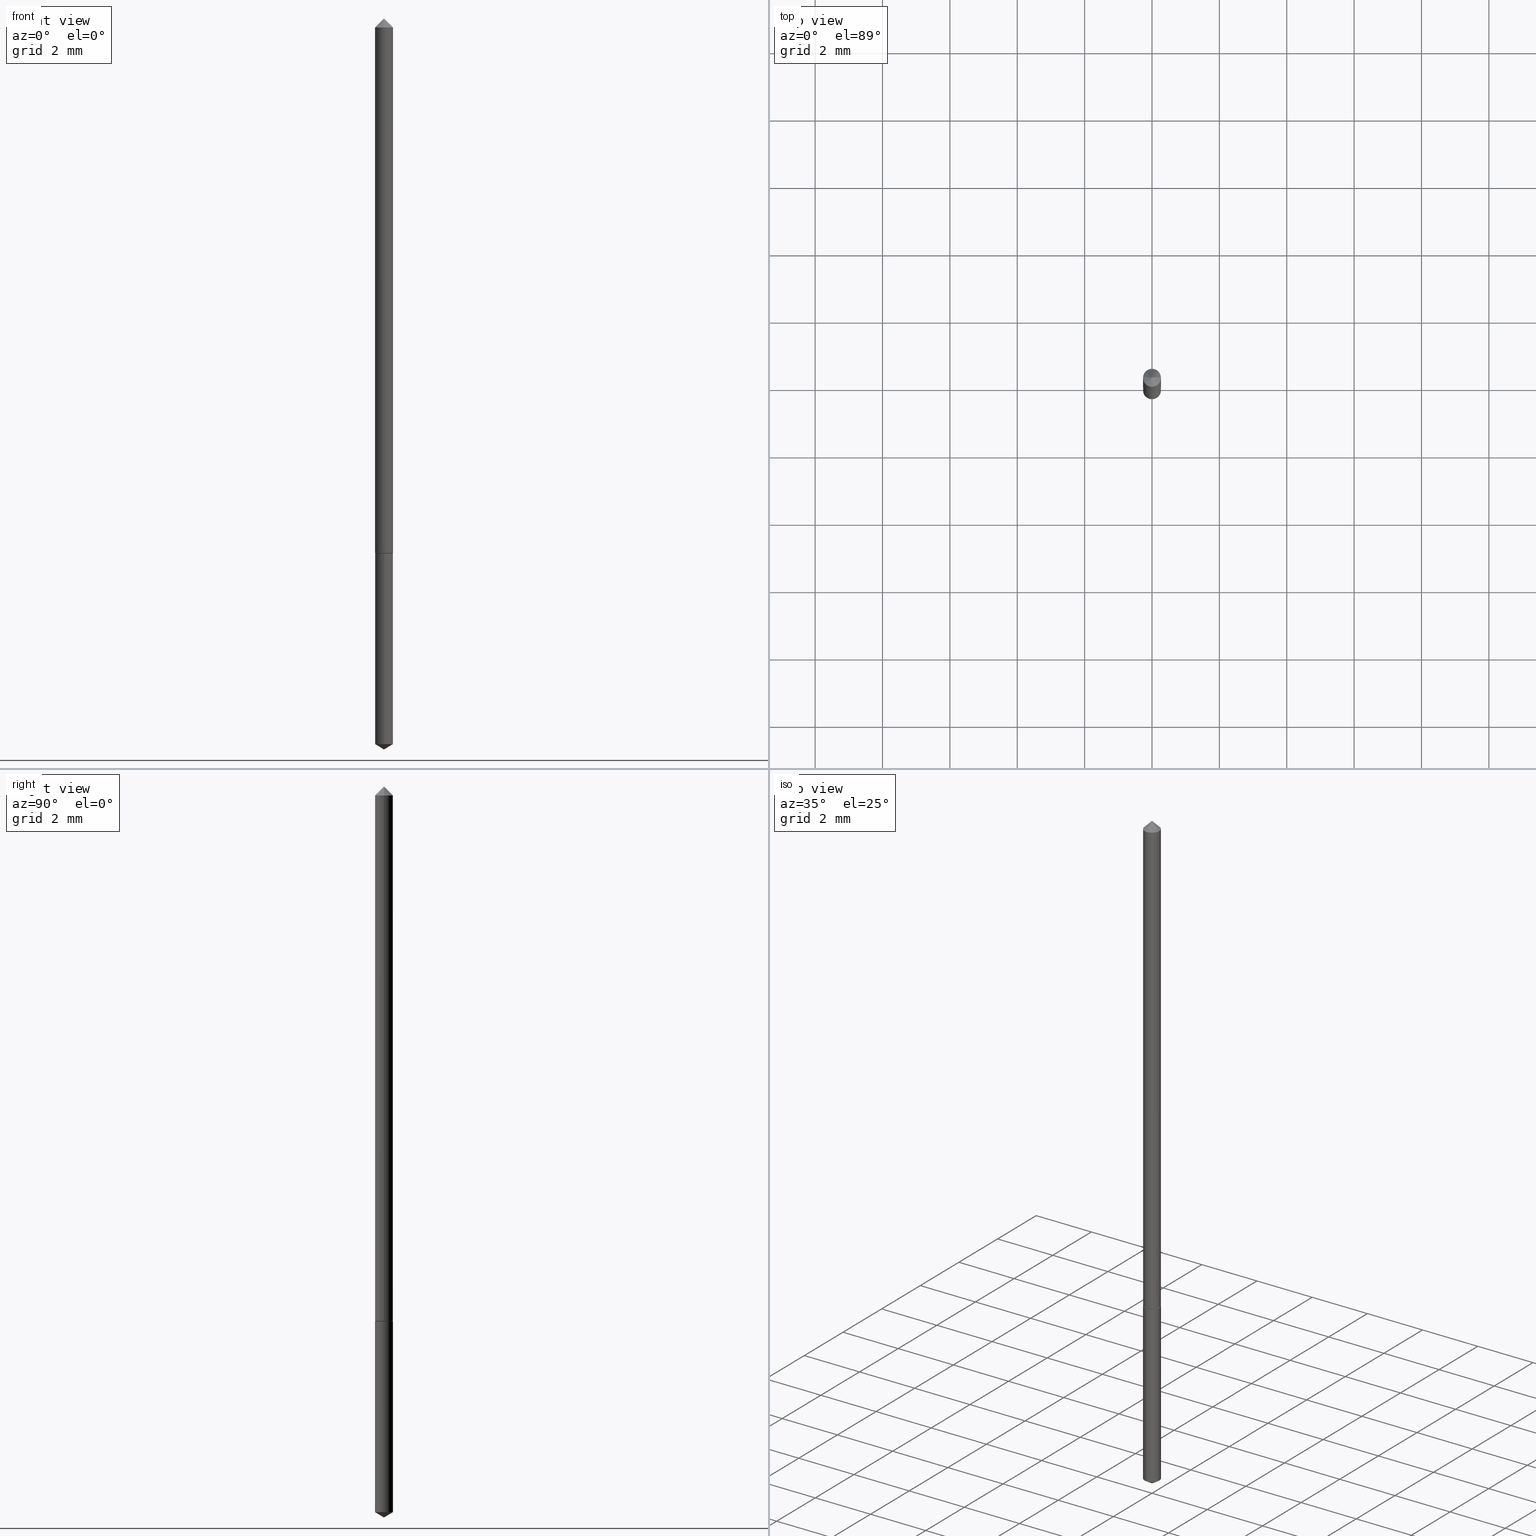
[diagram: canonical four-view strip — front | top / right | iso, engineering-drawing reading convention]
A machine part, canonical four-view strip (front | top / right | iso — engineering-drawing reading convention). The complete STEP part file that produces these views, byte-faithful:
ISO-10303-21;
HEADER;
FILE_DESCRIPTION (( 'STEP AP203' ),
    '1' );
FILE_NAME ('51075.STEP',
    '2024-04-22T18:24:29',
    ( '' ),
    ( '' ),
    'SwSTEP 2.0',
    'SolidWorks 2023',
    '' );
FILE_SCHEMA (( 'CONFIG_CONTROL_DESIGN' ));
ENDSEC;

DATA;
#1 = DIRECTION ( 'NONE',  ( -2.445468806185136597E-29, 3.491481338843145583E-15, 1.000000000000000000 ) ) ;
#2 = AXIS2_PLACEMENT_3D ( 'NONE', #29, #145, #138 ) ;
#3 = CARTESIAN_POINT ( 'NONE',  ( 0.01050000000000000586, -1.824298999545548390E-16, -0.03125000000000020123 ) ) ;
#4 = EDGE_LOOP ( 'NONE', ( #265, #203 ) ) ;
#5 = CARTESIAN_POINT ( 'NONE',  ( -0.01050000000000008218, -2.179144216968439268E-15, -0.6454999999999998517 ) ) ;
#6 = DIRECTION ( 'NONE',  ( 1.000000000000000000, -6.982962677686277755E-15, 0.000000000000000000 ) ) ;
#7 = VERTEX_POINT ( 'NONE', #179 ) ;
#8 = CARTESIAN_POINT ( 'NONE',  ( 0.01050000000000008218, -2.327072312338956554E-15, -0.6454999999999998517 ) ) ;
#9 = VERTEX_POINT ( 'NONE', #11 ) ;
#10 = CARTESIAN_POINT ( 'NONE',  ( 7.642090019328601786E-31, -1.091087918388490144E-16, -0.03125000000000020123 ) ) ;
#11 = CARTESIAN_POINT ( 'NONE',  ( 7.460698725483177409E-17, 0.01049999999999697009, -0.8686909635002105778 ) ) ;
#12 = CONICAL_SURFACE ( 'NONE', #79, 65.52281426576843160, 1.029744258676654534 ) ;
#13 = DIRECTION ( 'NONE',  ( -2.445468806185136597E-29, 3.491481338843145583E-15, 1.000000000000000000 ) ) ;
#14 = ORIENTED_EDGE ( 'NONE', *, *, #215, .F. ) ;
#15 = DIRECTION ( 'NONE',  ( 6.982962677686265922E-15, 1.000000000000000000, -3.491556844602635830E-15 ) ) ;
#16 = LOCAL_TIME ( 14, 24, 29.00000000000000000, #232 ) ;
#17 = PERSON_AND_ORGANIZATION_ROLE ( 'creator' ) ;
#18 = DIRECTION ( 'NONE',  ( 0.000000000000000000, 0.000000000000000000, 1.000000000000000000 ) ) ;
#19 = ADVANCED_FACE ( 'NONE', ( #205 ), #316, .T. ) ;
#20 = DIRECTION ( 'NONE',  ( 1.000000000000000000, 0.000000000000000000, 0.000000000000000000 ) ) ;
#21 = ORIENTED_EDGE ( 'NONE', *, *, #98, .T. ) ;
#22 = CIRCLE ( 'NONE', #270, 0.01050000000000000239 ) ;
#23 = CARTESIAN_POINT ( 'NONE',  ( 2.139739070695702663E-29, -3.055112239027306154E-15, -0.8750000000000000000 ) ) ;
#24 = CARTESIAN_POINT ( 'NONE',  ( -0.01050000000000000586, -1.106823010776236722E-15, -0.03125000000000020123 ) ) ;
#25 = DATE_AND_TIME ( #128, #287 ) ;
#26 = CARTESIAN_POINT ( 'NONE',  ( 0.01050000000000000586, -1.811440208154501395E-16, -0.03125000000000020123 ) ) ;
#27 = EDGE_CURVE ( 'NONE', #246, #174, #114, .T. ) ;
#28 = FACE_OUTER_BOUND ( 'NONE', #222, .T. ) ;
#29 = CARTESIAN_POINT ( 'NONE',  ( 7.642090019328601786E-31, -1.091087918388490144E-16, -0.03125000000000020123 ) ) ;
#30 = ORIENTED_EDGE ( 'NONE', *, *, #98, .F. ) ;
#31 = CONICAL_SURFACE ( 'NONE', #181, 0.01050000000000008218, 0.7853981633973970977 ) ;
#32 = AXIS2_PLACEMENT_3D ( 'NONE', #338, #82, #196 ) ;
#33 = EDGE_LOOP ( 'NONE', ( #262, #161, #104, #14 ) ) ;
#34 = ORIENTED_EDGE ( 'NONE', *, *, #280, .F. ) ;
#35 = ADVANCED_FACE ( 'NONE', ( #28 ), #31, .T. ) ;
#36 = ORIENTED_EDGE ( 'NONE', *, *, #135, .T. ) ;
#37 = DIRECTION ( 'NONE',  ( 1.000000000000000000, -6.982962677686265133E-15, 0.000000000000000000 ) ) ;
#38 = VECTOR ( 'NONE', #349, 39.37007874015748143 ) ;
#39 = ORIENTED_EDGE ( 'NONE', *, *, #257, .T. ) ;
#40 = VECTOR ( 'NONE', #130, 39.37007874015748143 ) ;
#41 = ORIENTED_EDGE ( 'NONE', *, *, #215, .T. ) ;
#42 = ADVANCED_FACE ( 'NONE', ( #264 ), #103, .T. ) ;
#43 = APPROVAL_STATUS ( 'not_yet_approved' ) ;
#44 = DATE_TIME_ROLE ( 'classification_date' ) ;
#45 = ADVANCED_FACE ( 'NONE', ( #148 ), #206, .T. ) ;
#46 = DIRECTION ( 'NONE',  ( -2.445416080795089318E-29, 3.491556844602636224E-15, 1.000000000000000000 ) ) ;
#47 = DATE_AND_TIME ( #330, #160 ) ;
#48 = CC_DESIGN_PERSON_AND_ORGANIZATION_ASSIGNMENT ( #216, #328, ( #80 ) ) ;
#49 = ORIENTED_EDGE ( 'NONE', *, *, #289, .F. ) ;
#50 = FACE_OUTER_BOUND ( 'NONE', #321, .T. ) ;
#51 = EDGE_CURVE ( 'NONE', #182, #273, #202, .T. ) ;
#52 = DIRECTION ( 'NONE',  ( -6.982962677686265133E-15, -1.000000000000000000, 0.000000000000000000 ) ) ;
#53 = CARTESIAN_POINT ( 'NONE',  ( 7.460698725483178642E-17, 0.01049999999999774551, -0.6459999999999999076 ) ) ;
#54 = CARTESIAN_POINT ( 'NONE',  ( 2.124344911986765447E-29, -3.033035102732987870E-15, -0.8686909635002105778 ) ) ;
#55 = CALENDAR_DATE ( 2024, 22, 4 ) ;
#56 = PERSON ( 'UNSPECIFIED', 'UNSPECIFIED', 'UNSPECIFIED', ('UNSPECIFIED'), ('UNSPECIFIED'), ('UNSPECIFIED') ) ;
#57 = APPROVAL ( #298, 'UNSPECIFIED' ) ;
#58 = DIRECTION ( 'NONE',  ( -2.445468806185136597E-29, 3.491481338843145583E-15, 1.000000000000000000 ) ) ;
#59 = FACE_OUTER_BOUND ( 'NONE', #302, .T. ) ;
#60 = LINE ( 'NONE', #5, #329 ) ;
#61 = CARTESIAN_POINT ( 'NONE',  ( 1.578550114392505144E-29, -2.253751204223250249E-15, -0.6454999999999998517 ) ) ;
#62 = ORIENTED_EDGE ( 'NONE', *, *, #111, .F. ) ;
#63 = CC_DESIGN_PERSON_AND_ORGANIZATION_ASSIGNMENT ( #187, #105, ( #240 ) ) ;
#64 = CC_DESIGN_SECURITY_CLASSIFICATION ( #115, ( #80 ) ) ;
#65 = EDGE_LOOP ( 'NONE', ( #239, #118, #237 ) ) ;
#66 = VERTEX_POINT ( 'NONE', #347 ) ;
#67 = DIRECTION ( 'NONE',  ( 2.445416080795089318E-29, -3.491556844602635830E-15, -1.000000000000000000 ) ) ;
#68 = EDGE_LOOP ( 'NONE', ( #171, #146, #94 ) ) ;
#69 = ORIENTED_EDGE ( 'NONE', *, *, #346, .T. ) ;
#70 = FACE_OUTER_BOUND ( 'NONE', #33, .T. ) ;
#71 = CIRCLE ( 'NONE', #185, 0.01050000000000000239 ) ;
#72 = APPLICATION_PROTOCOL_DEFINITION ( 'international standard', 'config_control_design', 1994, #176 ) ;
#73 = SECURITY_CLASSIFICATION_LEVEL ( 'unclassified' ) ;
#74 = ADVANCED_BREP_SHAPE_REPRESENTATION ( '51075', ( #358, #109, #297 ), #96 ) ;
#75 = AXIS2_PLACEMENT_3D ( 'NONE', #169, #150, #117 ) ;
#76 = DIRECTION ( 'NONE',  ( -6.982962677686265133E-15, -1.000000000000000000, 0.000000000000000000 ) ) ;
#77 = DATE_TIME_ROLE ( 'creation_date' ) ;
#78 = LINE ( 'NONE', #191, #296 ) ;
#79 = AXIS2_PLACEMENT_3D ( 'NONE', #303, #46, #107 ) ;
#80 = PRODUCT_DEFINITION_FORMATION_WITH_SPECIFIED_SOURCE ( 'ANY', '', #240, .NOT_KNOWN. ) ;
#81 = LINE ( 'NONE', #308, #87 ) ;
#82 = DIRECTION ( 'NONE',  ( -2.445416080795089318E-29, 3.491556844602636224E-15, 1.000000000000000000 ) ) ;
#83 = DIRECTION ( 'NONE',  ( -2.445416080795089318E-29, 3.491556844602635830E-15, 1.000000000000000000 ) ) ;
#84 = CARTESIAN_POINT ( 'NONE',  ( -0.01050000000000004402, 7.460698725481083230E-17, -5.164881844767672693E-31 ) ) ;
#85 = DIRECTION ( 'NONE',  ( 6.090539988449779224E-15, 0.8571673007021141100, 0.5150380749100511579 ) ) ;
#86 = PLANE ( 'NONE',  #154 ) ;
#87 = VECTOR ( 'NONE', #85, 39.37007874015748143 ) ;
#88 = CARTESIAN_POINT ( 'NONE',  ( 1.579772848795597946E-29, -2.255496944892671358E-15, -0.6459999999999999076 ) ) ;
#89 = EDGE_CURVE ( 'NONE', #273, #178, #192, .T. ) ;
#90 = DIRECTION ( 'NONE',  ( -6.982962677686265133E-15, -1.000000000000000000, 0.000000000000000000 ) ) ;
#91 = ORIENTED_EDGE ( 'NONE', *, *, #200, .F. ) ;
#92 = DESIGN_CONTEXT ( 'detailed design', #351, 'design' ) ;
#93 = ORIENTED_EDGE ( 'NONE', *, *, #89, .T. ) ;
#94 = ORIENTED_EDGE ( 'NONE', *, *, #157, .F. ) ;
#95 = FACE_OUTER_BOUND ( 'NONE', #65, .T. ) ;
#96 =( GEOMETRIC_REPRESENTATION_CONTEXT ( 3 ) GLOBAL_UNCERTAINTY_ASSIGNED_CONTEXT ( ( #233 ) ) GLOBAL_UNIT_ASSIGNED_CONTEXT ( ( #217, #272, #353 ) ) REPRESENTATION_CONTEXT ( 'NONE', 'WORKASPACE' ) );
#97 = PRODUCT_DEFINITION_SHAPE ( 'NONE', 'NONE',  #197 ) ;
#98 = EDGE_CURVE ( 'NONE', #7, #174, #173, .T. ) ;
#99 = APPROVAL_PERSON_ORGANIZATION ( #158, #143, #260 ) ;
#100 = COORDINATED_UNIVERSAL_TIME_OFFSET ( 5, 0, .BEHIND. ) ;
#101 = COORDINATED_UNIVERSAL_TIME_OFFSET ( 5, 0, .BEHIND. ) ;
#102 = CC_DESIGN_DATE_AND_TIME_ASSIGNMENT ( #47, #44, ( #115 ) ) ;
#103 = CONICAL_SURFACE ( 'NONE', #318, 0.01050000000000008218, 0.7853981633973970977 ) ;
#104 = ORIENTED_EDGE ( 'NONE', *, *, #313, .T. ) ;
#105 = PERSON_AND_ORGANIZATION_ROLE ( 'design_owner' ) ;
#106 = ORIENTED_EDGE ( 'NONE', *, *, #257, .F. ) ;
#107 = DIRECTION ( 'NONE',  ( -6.982962677686265922E-15, -1.000000000000000000, 3.468864327941594214E-15 ) ) ;
#108 = CARTESIAN_POINT ( 'NONE',  ( 1.579772848795597946E-29, -2.255496944892671358E-15, -0.6459999999999999076 ) ) ;
#109 = MANIFOLD_SOLID_BREP ( 'Body-Move/Copy2[2]', #139 ) ;
#110 = CARTESIAN_POINT ( 'NONE',  ( 1.579772848795597946E-29, -2.255496944892671358E-15, -0.6459999999999999076 ) ) ;
#111 = EDGE_CURVE ( 'NONE', #178, #273, #152, .T. ) ;
#112 = ADVANCED_FACE ( 'NONE', ( #95 ), #334, .T. ) ;
#113 = DIRECTION ( 'NONE',  ( -2.445416080795089318E-29, 3.491556844602636224E-15, 1.000000000000000000 ) ) ;
#114 = CIRCLE ( 'NONE', #357, 0.01050000000000000586 ) ;
#115 = SECURITY_CLASSIFICATION ( '', '', #73 ) ;
#116 = DIRECTION ( 'NONE',  ( -2.445468806185136597E-29, 3.491481338843145583E-15, 1.000000000000000000 ) ) ;
#117 = DIRECTION ( 'NONE',  ( 1.000000000000000000, -6.982962677686277755E-15, 0.000000000000000000 ) ) ;
#118 = ORIENTED_EDGE ( 'NONE', *, *, #299, .T. ) ;
#119 = ADVANCED_FACE ( 'NONE', ( #360 ), #12, .T. ) ;
#120 = VERTEX_POINT ( 'NONE', #278 ) ;
#121 = DIRECTION ( 'NONE',  ( -2.445468806185136597E-29, 3.491481338843145583E-15, 1.000000000000000000 ) ) ;
#122 = CIRCLE ( 'NONE', #253, 0.01050000000000000239 ) ;
#123 = CARTESIAN_POINT ( 'NONE',  ( 0.000000000000000000, 0.000000000000000000, 0.000000000000000000 ) ) ;
#124 = CARTESIAN_POINT ( 'NONE',  ( 0.01050000000000004402, -7.332110811570612044E-17, 5.119985614585753392E-31 ) ) ;
#125 = CONICAL_SURFACE ( 'NONE', #159, 0.01050000000000000586, 0.7853981633974450594 ) ;
#126 = CC_DESIGN_APPROVAL ( #143, ( #115 ) ) ;
#127 = ADVANCED_FACE ( 'NONE', ( #50 ), #125, .T. ) ;
#128 = CALENDAR_DATE ( 2024, 22, 4 ) ;
#129 = CC_DESIGN_PERSON_AND_ORGANIZATION_ASSIGNMENT ( #245, #355, ( #115 ) ) ;
#130 = DIRECTION ( 'NONE',  ( -2.445416080795089318E-29, 3.491556844602635830E-15, 1.000000000000000000 ) ) ;
#131 = AXIS2_PLACEMENT_3D ( 'NONE', #110, #133, #250 ) ;
#132 = DIRECTION ( 'NONE',  ( 1.000000000000000000, -6.982962677686268288E-15, 4.876176775795935232E-29 ) ) ;
#133 = DIRECTION ( 'NONE',  ( -2.438088387897960049E-29, 3.491481338843145188E-15, 1.000000000000000000 ) ) ;
#134 = LINE ( 'NONE', #188, #40 ) ;
#135 = EDGE_CURVE ( 'NONE', #7, #246, #283, .T. ) ;
#136 = CARTESIAN_POINT ( 'NONE',  ( -0.01000000000000009909, -2.181793444142550075E-15, -0.6459999999999999076 ) ) ;
#137 = DIMENSIONAL_EXPONENTS ( 1.000000000000000000, 0.000000000000000000, 0.000000000000000000, 0.000000000000000000, 0.000000000000000000, 0.000000000000000000, 0.000000000000000000 ) ;
#138 = DIRECTION ( 'NONE',  ( -1.000000000000000000, 6.982962677686265922E-15, 0.000000000000000000 ) ) ;
#139 = CLOSED_SHELL ( 'NONE', ( #127, #45, #35, #279, #42, #354, #244 ) ) ;
#140 = LOCAL_TIME ( 14, 24, 29.00000000000000000, #295 ) ;
#141 = CARTESIAN_POINT ( 'NONE',  ( -0.01050000000000008218, -2.179144216968439268E-15, -0.6454999999999998517 ) ) ;
#142 = APPLICATION_PROTOCOL_DEFINITION ( 'international standard', 'config_control_design', 1994, #351 ) ;
#143 = APPROVAL ( #275, 'UNSPECIFIED' ) ;
#144 = CARTESIAN_POINT ( 'NONE',  ( 1.578550114392505144E-29, -2.253751204223250249E-15, -0.6454999999999998517 ) ) ;
#145 = DIRECTION ( 'NONE',  ( 2.445468806185136597E-29, -3.491481338843145583E-15, -1.000000000000000000 ) ) ;
#146 = ORIENTED_EDGE ( 'NONE', *, *, #204, .T. ) ;
#147 = VECTOR ( 'NONE', #259, 39.37007874015748143 ) ;
#148 = FACE_OUTER_BOUND ( 'NONE', #189, .T. ) ;
#149 = ORIENTED_EDGE ( 'NONE', *, *, #135, .F. ) ;
#150 = DIRECTION ( 'NONE',  ( -2.445468806185136597E-29, 3.491481338843145583E-15, 1.000000000000000000 ) ) ;
#151 = ORIENTED_EDGE ( 'NONE', *, *, #219, .T. ) ;
#152 = CIRCLE ( 'NONE', #75, 0.01050000000000008218 ) ;
#153 = CARTESIAN_POINT ( 'NONE',  ( 7.642090019328601786E-31, -1.091087918388490144E-16, -0.03125000000000020123 ) ) ;
#154 = AXIS2_PLACEMENT_3D ( 'NONE', #162, #67, #15 ) ;
#155 = DATE_AND_TIME ( #190, #325 ) ;
#156 = DIRECTION ( 'NONE',  ( -5.985567269335943646E-15, -0.8571673007021105573, 0.5150380749100571531 ) ) ;
#157 = EDGE_CURVE ( 'NONE', #323, #9, #122, .T. ) ;
#158 = PERSON_AND_ORGANIZATION ( #56, #242 ) ;
#159 = AXIS2_PLACEMENT_3D ( 'NONE', #10, #364, #254 ) ;
#160 = LOCAL_TIME ( 14, 24, 29.00000000000000000, #101 ) ;
#161 = ORIENTED_EDGE ( 'NONE', *, *, #111, .T. ) ;
#162 = CARTESIAN_POINT ( 'NONE',  ( 1.579772848795597946E-29, -2.255496944892671358E-15, -0.6459999999999999076 ) ) ;
#163 = AXIS2_PLACEMENT_3D ( 'NONE', #225, #221, #339 ) ;
#164 = APPROVAL_ROLE ( '' ) ;
#165 = APPROVAL_PERSON_ORGANIZATION ( #243, #57, #304 ) ;
#166 = DIRECTION ( 'NONE',  ( -6.982962677686265922E-15, -1.000000000000000000, 3.468864327941594214E-15 ) ) ;
#167 = DIRECTION ( 'NONE',  ( -2.445468806185136877E-29, 3.491481338843145188E-15, 1.000000000000000000 ) ) ;
#168 = CARTESIAN_POINT ( 'NONE',  ( 0.000000000000000000, 0.000000000000000000, 0.000000000000000000 ) ) ;
#169 = CARTESIAN_POINT ( 'NONE',  ( 1.578550114392505144E-29, -2.253751204223250249E-15, -0.6454999999999998517 ) ) ;
#170 = DIRECTION ( 'NONE',  ( 1.000000000000000000, -6.982962677686277755E-15, 0.000000000000000000 ) ) ;
#171 = ORIENTED_EDGE ( 'NONE', *, *, #299, .F. ) ;
#172 = CIRCLE ( 'NONE', #223, 0.01050000000000000239 ) ;
#173 = LINE ( 'NONE', #288, #312 ) ;
#174 = VERTEX_POINT ( 'NONE', #24 ) ;
#175 = ORIENTED_EDGE ( 'NONE', *, *, #27, .F. ) ;
#176 = APPLICATION_CONTEXT ( 'configuration controlled 3d designs of mechanical parts and assemblies' ) ;
#177 = EDGE_CURVE ( 'NONE', #234, #120, #172, .T. ) ;
#178 = VERTEX_POINT ( 'NONE', #141 ) ;
#179 = CARTESIAN_POINT ( 'NONE',  ( 5.074347772834189876E-31, -7.244823778099573844E-17, -0.02075000000000012945 ) ) ;
#180 = ORIENTED_EDGE ( 'NONE', *, *, #227, .T. ) ;
#181 = AXIS2_PLACEMENT_3D ( 'NONE', #61, #13, #170 ) ;
#182 = VERTEX_POINT ( 'NONE', #224 ) ;
#183 = FACE_OUTER_BOUND ( 'NONE', #210, .T. ) ;
#184 = EDGE_CURVE ( 'NONE', #120, #234, #22, .T. ) ;
#185 = AXIS2_PLACEMENT_3D ( 'NONE', #230, #344, #76 ) ;
#186 = APPROVAL_PERSON_ORGANIZATION ( #271, #306, #164 ) ;
#187 = PERSON_AND_ORGANIZATION ( #56, #242 ) ;
#188 = CARTESIAN_POINT ( 'NONE',  ( -7.332110811568999810E-17, -0.01050000000000225753, -0.6459999999999999076 ) ) ;
#189 = EDGE_LOOP ( 'NONE', ( #93, #151, #175, #208 ) ) ;
#190 = CALENDAR_DATE ( 2024, 22, 4 ) ;
#191 = CARTESIAN_POINT ( 'NONE',  ( 7.460698725482631370E-17, 0.01049999999999774551, -0.6459999999999999076 ) ) ;
#192 = CIRCLE ( 'NONE', #324, 0.01050000000000008218 ) ;
#193 = CARTESIAN_POINT ( 'NONE',  ( 1.579772848795597946E-29, -2.255496944892671358E-15, -0.6459999999999999076 ) ) ;
#194 = VERTEX_POINT ( 'NONE', #136 ) ;
#195 = DIRECTION ( 'NONE',  ( -2.445416080795089318E-29, 3.491556844602636224E-15, 1.000000000000000000 ) ) ;
#196 = DIRECTION ( 'NONE',  ( -6.982962677686265133E-15, -1.000000000000000000, 0.000000000000000000 ) ) ;
#197 = PRODUCT_DEFINITION ( 'UNKNOWN', '', #80, #92 ) ;
#198 = DIRECTION ( 'NONE',  ( -2.445468806185136597E-29, 3.491481338843145583E-15, 1.000000000000000000 ) ) ;
#199 = CARTESIAN_POINT ( 'NONE',  ( 0.000000000000000000, 0.000000000000000000, 0.000000000000000000 ) ) ;
#200 = EDGE_CURVE ( 'NONE', #194, #178, #60, .T. ) ;
#201 = CONICAL_SURFACE ( 'NONE', #2, 0.01050000000000000586, 0.7853981633974450594 ) ;
#202 = LINE ( 'NONE', #8, #282 ) ;
#203 = ORIENTED_EDGE ( 'NONE', *, *, #177, .T. ) ;
#204 = EDGE_CURVE ( 'NONE', #66, #9, #81, .T. ) ;
#205 = FACE_OUTER_BOUND ( 'NONE', #266, .T. ) ;
#206 = CYLINDRICAL_SURFACE ( 'NONE', #207, 0.01050000000000004402 ) ;
#207 = AXIS2_PLACEMENT_3D ( 'NONE', #123, #116, #343 ) ;
#208 = ORIENTED_EDGE ( 'NONE', *, *, #313, .F. ) ;
#209 = EDGE_LOOP ( 'NONE', ( #106, #34 ) ) ;
#210 = EDGE_LOOP ( 'NONE', ( #319, #238, #292, #247 ) ) ;
#211 = EDGE_LOOP ( 'NONE', ( #91, #267, #235, #62 ) ) ;
#212 = CC_DESIGN_PERSON_AND_ORGANIZATION_ASSIGNMENT ( #220, #311, ( #197 ) ) ;
#213 = CIRCLE ( 'NONE', #163, 0.01000000000000009909 ) ;
#214 = DATE_AND_TIME ( #55, #140 ) ;
#215 = EDGE_CURVE ( 'NONE', #174, #246, #293, .T. ) ;
#216 = PERSON_AND_ORGANIZATION ( #56, #242 ) ;
#217 =( CONVERSION_BASED_UNIT ( 'INCH', #249 ) LENGTH_UNIT ( ) NAMED_UNIT ( #137 ) );
#218 = AXIS2_PLACEMENT_3D ( 'NONE', #193, #309, #307 ) ;
#219 = EDGE_CURVE ( 'NONE', #178, #174, #315, .T. ) ;
#220 = PERSON_AND_ORGANIZATION ( #56, #242 ) ;
#221 = DIRECTION ( 'NONE',  ( -2.445468806185136597E-29, 3.491481338843145583E-15, 1.000000000000000000 ) ) ;
#222 = EDGE_LOOP ( 'NONE', ( #39, #336, #286, #290 ) ) ;
#223 = AXIS2_PLACEMENT_3D ( 'NONE', #337, #195, #90 ) ;
#224 = CARTESIAN_POINT ( 'NONE',  ( 0.01000000000000009909, -2.325326571669534656E-15, -0.6459999999999999076 ) ) ;
#225 = CARTESIAN_POINT ( 'NONE',  ( 1.579772848795597946E-29, -2.255496944892671358E-15, -0.6459999999999999076 ) ) ;
#226 = CC_DESIGN_PERSON_AND_ORGANIZATION_ASSIGNMENT ( #300, #17, ( #80 ) ) ;
#227 = EDGE_CURVE ( 'NONE', #9, #323, #71, .T. ) ;
#228 = CARTESIAN_POINT ( 'NONE',  ( 0.01050000000000008218, -2.327072312338956554E-15, -0.6454999999999998517 ) ) ;
#229 = DATE_AND_TIME ( #236, #16 ) ;
#230 = CARTESIAN_POINT ( 'NONE',  ( 2.124344911986765447E-29, -3.033035102732987870E-15, -0.8686909635002105778 ) ) ;
#231 = DIRECTION ( 'NONE',  ( -6.982962677686265133E-15, -1.000000000000000000, 0.000000000000000000 ) ) ;
#232 = COORDINATED_UNIVERSAL_TIME_OFFSET ( 5, 0, .BEHIND. ) ;
#233 = UNCERTAINTY_MEASURE_WITH_UNIT (LENGTH_MEASURE( 1.000000000000000082E-05 ), #217, 'distance_accuracy_value', 'NONE');
#234 = VERTEX_POINT ( 'NONE', #53 ) ;
#235 = ORIENTED_EDGE ( 'NONE', *, *, #51, .T. ) ;
#236 = CALENDAR_DATE ( 2024, 22, 4 ) ;
#237 = ORIENTED_EDGE ( 'NONE', *, *, #227, .F. ) ;
#238 = ORIENTED_EDGE ( 'NONE', *, *, #289, .T. ) ;
#239 = ORIENTED_EDGE ( 'NONE', *, *, #204, .F. ) ;
#240 = PRODUCT ( '51075', '51075', '', ( #332 ) ) ;
#241 = AXIS2_PLACEMENT_3D ( 'NONE', #320, #331, #166 ) ;
#242 = ORGANIZATION ( 'UNSPECIFIED', 'UNSPECIFIED', '' ) ;
#243 = PERSON_AND_ORGANIZATION ( #56, #242 ) ;
#244 = ADVANCED_FACE ( 'NONE', ( #59 ), #201, .T. ) ;
#245 = PERSON_AND_ORGANIZATION ( #56, #242 ) ;
#246 = VERTEX_POINT ( 'NONE', #3 ) ;
#247 = ORIENTED_EDGE ( 'NONE', *, *, #346, .F. ) ;
#248 = CLOSED_SHELL ( 'NONE', ( #333, #119, #112, #19, #274 ) ) ;
#249 = LENGTH_MEASURE_WITH_UNIT ( LENGTH_MEASURE( 0.02539999999999999897 ), #341 );
#250 = DIRECTION ( 'NONE',  ( 1.000000000000000000, -6.982962677686265922E-15, 4.876176775795935793E-29 ) ) ;
#251 = DIRECTION ( 'NONE',  ( -0.7071067811865112684, 7.493145998870223209E-15, 0.7071067811865837660 ) ) ;
#252 = CYLINDRICAL_SURFACE ( 'NONE', #32, 0.01050000000000000239 ) ;
#253 = AXIS2_PLACEMENT_3D ( 'NONE', #54, #113, #231 ) ;
#254 = DIRECTION ( 'NONE',  ( -1.000000000000000000, 6.982962677686265922E-15, 0.000000000000000000 ) ) ;
#255 = FACE_OUTER_BOUND ( 'NONE', #4, .T. ) ;
#256 = CARTESIAN_POINT ( 'NONE',  ( 7.642090019328601786E-31, -1.091087918388490144E-16, -0.03125000000000020123 ) ) ;
#257 = EDGE_CURVE ( 'NONE', #182, #194, #276, .T. ) ;
#258 = AXIS2_PLACEMENT_3D ( 'NONE', #256, #198, #310 ) ;
#259 = DIRECTION ( 'NONE',  ( 0.7071067811865452413, -7.319954787623248157E-15, -0.7071067811865497932 ) ) ;
#260 = APPROVAL_ROLE ( '' ) ;
#261 = DIRECTION ( 'NONE',  ( -0.7071067811865452413, 2.468850131082233000E-15, -0.7071067811865497932 ) ) ;
#262 = ORIENTED_EDGE ( 'NONE', *, *, #219, .F. ) ;
#263 = SHAPE_DEFINITION_REPRESENTATION ( #97, #74 ) ;
#264 = FACE_OUTER_BOUND ( 'NONE', #211, .T. ) ;
#265 = ORIENTED_EDGE ( 'NONE', *, *, #184, .T. ) ;
#266 = EDGE_LOOP ( 'NONE', ( #49, #180, #69, #356 ) ) ;
#267 = ORIENTED_EDGE ( 'NONE', *, *, #280, .T. ) ;
#268 = VECTOR ( 'NONE', #156, 39.37007874015748143 ) ;
#269 = DIRECTION ( 'NONE',  ( -2.445416080795089318E-29, 3.491556844602636224E-15, 1.000000000000000000 ) ) ;
#270 = AXIS2_PLACEMENT_3D ( 'NONE', #108, #340, #52 ) ;
#271 = PERSON_AND_ORGANIZATION ( #56, #242 ) ;
#272 =( NAMED_UNIT ( * ) PLANE_ANGLE_UNIT ( ) SI_UNIT ( $, .RADIAN. ) );
#273 = VERTEX_POINT ( 'NONE', #228 ) ;
#274 = ADVANCED_FACE ( 'NONE', ( #255 ), #86, .F. ) ;
#275 = APPROVAL_STATUS ( 'not_yet_approved' ) ;
#276 = CIRCLE ( 'NONE', #218, 0.01000000000000009909 ) ;
#277 = FACE_OUTER_BOUND ( 'NONE', #209, .T. ) ;
#278 = CARTESIAN_POINT ( 'NONE',  ( -7.332110811568999810E-17, -0.01050000000000225753, -0.6459999999999999076 ) ) ;
#279 = ADVANCED_FACE ( 'NONE', ( #277 ), #363, .F. ) ;
#280 = EDGE_CURVE ( 'NONE', #194, #182, #213, .T. ) ;
#281 = LINE ( 'NONE', #23, #268 ) ;
#282 = VECTOR ( 'NONE', #317, 39.37007874015748143 ) ;
#283 = LINE ( 'NONE', #26, #147 ) ;
#284 = COORDINATED_UNIVERSAL_TIME_OFFSET ( 5, 0, .BEHIND. ) ;
#285 = DIRECTION ( 'NONE',  ( 1.000000000000000000, -6.982962677686277755E-15, 0.000000000000000000 ) ) ;
#286 = ORIENTED_EDGE ( 'NONE', *, *, #89, .F. ) ;
#287 = LOCAL_TIME ( 14, 24, 29.00000000000000000, #284 ) ;
#288 = CARTESIAN_POINT ( 'NONE',  ( -0.01050000000000000586, -3.578768372314317125E-17, -0.03125000000000020123 ) ) ;
#289 = EDGE_CURVE ( 'NONE', #9, #234, #78, .T. ) ;
#290 = ORIENTED_EDGE ( 'NONE', *, *, #51, .F. ) ;
#291 = DIRECTION ( 'NONE',  ( -2.445468806185136597E-29, 3.491481338843145583E-15, 1.000000000000000000 ) ) ;
#292 = ORIENTED_EDGE ( 'NONE', *, *, #184, .F. ) ;
#293 = CIRCLE ( 'NONE', #258, 0.01050000000000000586 ) ;
#294 = PRODUCT_RELATED_PRODUCT_CATEGORY ( 'detail', '', ( #240 ) ) ;
#295 = COORDINATED_UNIVERSAL_TIME_OFFSET ( 5, 0, .BEHIND. ) ;
#296 = VECTOR ( 'NONE', #83, 39.37007874015748143 ) ;
#297 = AXIS2_PLACEMENT_3D ( 'NONE', #199, #18, #20 ) ;
#298 = APPROVAL_STATUS ( 'not_yet_approved' ) ;
#299 = EDGE_CURVE ( 'NONE', #66, #323, #281, .T. ) ;
#300 = PERSON_AND_ORGANIZATION ( #56, #242 ) ;
#301 = LINE ( 'NONE', #124, #38 ) ;
#302 = EDGE_LOOP ( 'NONE', ( #149, #21, #41 ) ) ;
#303 = CARTESIAN_POINT ( 'NONE',  ( -9.413645052205230890E-28, 1.344078044354349087E-13, 38.49507874015748143 ) ) ;
#304 = APPROVAL_ROLE ( '' ) ;
#305 = VECTOR ( 'NONE', #167, 39.37007874015748143 ) ;
#306 = APPROVAL ( #43, 'UNSPECIFIED' ) ;
#307 = DIRECTION ( 'NONE',  ( 1.000000000000000000, -6.982962677686262766E-15, 0.000000000000000000 ) ) ;
#308 = CARTESIAN_POINT ( 'NONE',  ( 2.139807789242191850E-29, -3.055014685586044235E-15, -0.8750000000000000000 ) ) ;
#309 = DIRECTION ( 'NONE',  ( -2.445468806185136597E-29, 3.491481338843145583E-15, 1.000000000000000000 ) ) ;
#310 = DIRECTION ( 'NONE',  ( 1.000000000000000000, -6.982962677686265133E-15, 0.000000000000000000 ) ) ;
#311 = PERSON_AND_ORGANIZATION_ROLE ( 'creator' ) ;
#312 = VECTOR ( 'NONE', #261, 39.37007874015748143 ) ;
#313 = EDGE_CURVE ( 'NONE', #273, #246, #301, .T. ) ;
#314 = CARTESIAN_POINT ( 'NONE',  ( 1.578550114392505144E-29, -2.253751204223250249E-15, -0.6454999999999998517 ) ) ;
#315 = LINE ( 'NONE', #84, #305 ) ;
#316 = CYLINDRICAL_SURFACE ( 'NONE', #350, 0.01050000000000000239 ) ;
#317 = DIRECTION ( 'NONE',  ( 0.7071067811865112684, -2.468850131081876830E-15, 0.7071067811865837660 ) ) ;
#318 = AXIS2_PLACEMENT_3D ( 'NONE', #144, #1, #6 ) ;
#319 = ORIENTED_EDGE ( 'NONE', *, *, #157, .T. ) ;
#320 = CARTESIAN_POINT ( 'NONE',  ( -9.413645052205230890E-28, 1.344078044354349087E-13, 38.49507874015748143 ) ) ;
#321 = EDGE_LOOP ( 'NONE', ( #30, #36, #345 ) ) ;
#322 = DIRECTION ( 'NONE',  ( -6.982962677686265133E-15, -1.000000000000000000, 0.000000000000000000 ) ) ;
#323 = VERTEX_POINT ( 'NONE', #326 ) ;
#324 = AXIS2_PLACEMENT_3D ( 'NONE', #314, #58, #285 ) ;
#325 = LOCAL_TIME ( 14, 24, 29.00000000000000000, #100 ) ;
#326 = CARTESIAN_POINT ( 'NONE',  ( -7.332110811568456235E-17, -0.01050000000000303468, -0.8686909635002105778 ) ) ;
#327 = APPROVAL_DATE_TIME ( #25, #306 ) ;
#328 = PERSON_AND_ORGANIZATION_ROLE ( 'design_supplier' ) ;
#329 = VECTOR ( 'NONE', #251, 39.37007874015748143 ) ;
#330 = CALENDAR_DATE ( 2024, 22, 4 ) ;
#331 = DIRECTION ( 'NONE',  ( -2.445416080795089318E-29, 3.491556844602636224E-15, 1.000000000000000000 ) ) ;
#332 = MECHANICAL_CONTEXT ( 'NONE', #176, 'mechanical' ) ;
#333 = ADVANCED_FACE ( 'NONE', ( #183 ), #252, .T. ) ;
#334 = CONICAL_SURFACE ( 'NONE', #241, 65.52281426576843160, 1.029744258676654534 ) ;
#335 = CC_DESIGN_APPROVAL ( #57, ( #197 ) ) ;
#336 = ORIENTED_EDGE ( 'NONE', *, *, #200, .T. ) ;
#337 = CARTESIAN_POINT ( 'NONE',  ( 1.579772848795597946E-29, -2.255496944892671358E-15, -0.6459999999999999076 ) ) ;
#338 = CARTESIAN_POINT ( 'NONE',  ( 1.579772848795597946E-29, -2.255496944892671358E-15, -0.6459999999999999076 ) ) ;
#339 = DIRECTION ( 'NONE',  ( 1.000000000000000000, -6.982962677686262766E-15, 0.000000000000000000 ) ) ;
#340 = DIRECTION ( 'NONE',  ( -2.445416080795089318E-29, 3.491556844602636224E-15, 1.000000000000000000 ) ) ;
#341 =( LENGTH_UNIT ( ) NAMED_UNIT ( * ) SI_UNIT ( $, .METRE. ) );
#342 = APPROVAL_DATE_TIME ( #229, #143 ) ;
#343 = DIRECTION ( 'NONE',  ( 1.000000000000000000, -6.982962677686268288E-15, 4.876176775795935232E-29 ) ) ;
#344 = DIRECTION ( 'NONE',  ( -2.445416080795089318E-29, 3.491556844602636224E-15, 1.000000000000000000 ) ) ;
#345 = ORIENTED_EDGE ( 'NONE', *, *, #27, .T. ) ;
#346 = EDGE_CURVE ( 'NONE', #323, #120, #134, .T. ) ;
#347 = CARTESIAN_POINT ( 'NONE',  ( 2.139739070695702943E-29, -3.055112239027306154E-15, -0.8750000000000000000 ) ) ;
#348 = CC_DESIGN_APPROVAL ( #306, ( #80 ) ) ;
#349 = DIRECTION ( 'NONE',  ( -2.445468806185136877E-29, 3.491481338843145188E-15, 1.000000000000000000 ) ) ;
#350 = AXIS2_PLACEMENT_3D ( 'NONE', #88, #269, #322 ) ;
#351 = APPLICATION_CONTEXT ( 'configuration controlled 3d designs of mechanical parts and assemblies' ) ;
#352 = CYLINDRICAL_SURFACE ( 'NONE', #359, 0.01050000000000004402 ) ;
#353 =( NAMED_UNIT ( * ) SI_UNIT ( $, .STERADIAN. ) SOLID_ANGLE_UNIT ( ) );
#354 = ADVANCED_FACE ( 'NONE', ( #70 ), #352, .T. ) ;
#355 = PERSON_AND_ORGANIZATION_ROLE ( 'classification_officer' ) ;
#356 = ORIENTED_EDGE ( 'NONE', *, *, #177, .F. ) ;
#357 = AXIS2_PLACEMENT_3D ( 'NONE', #153, #291, #37 ) ;
#358 = MANIFOLD_SOLID_BREP ( 'Body-Move/Copy2[1]', #248 ) ;
#359 = AXIS2_PLACEMENT_3D ( 'NONE', #168, #121, #132 ) ;
#360 = FACE_OUTER_BOUND ( 'NONE', #68, .T. ) ;
#361 = APPROVAL_DATE_TIME ( #155, #57 ) ;
#362 = CC_DESIGN_DATE_AND_TIME_ASSIGNMENT ( #214, #77, ( #197 ) ) ;
#363 = PLANE ( 'NONE',  #131 ) ;
#364 = DIRECTION ( 'NONE',  ( 2.445468806185136597E-29, -3.491481338843145583E-15, -1.000000000000000000 ) ) ;
ENDSEC;
END-ISO-10303-21;
